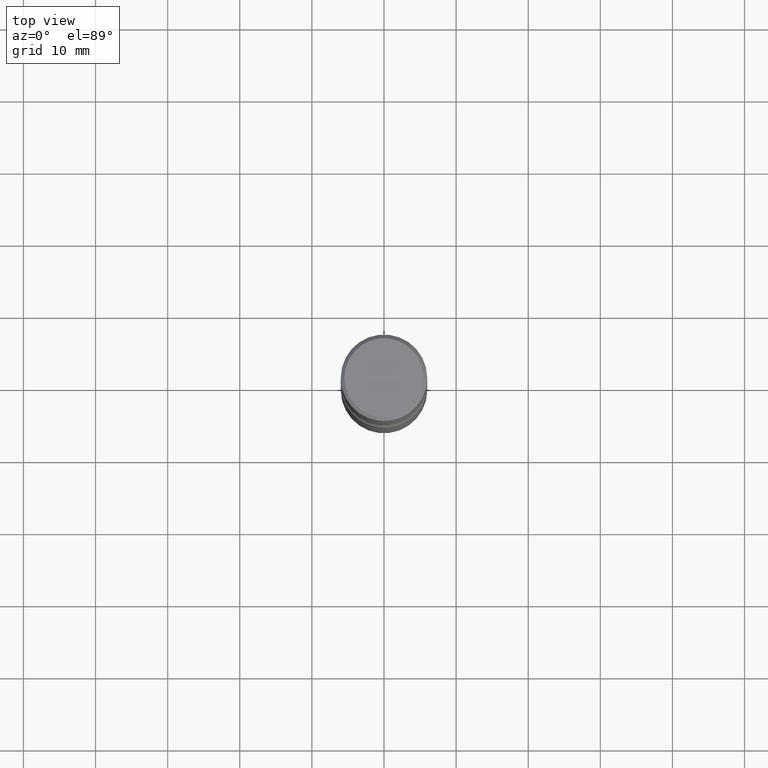
[diagram: clean part render]
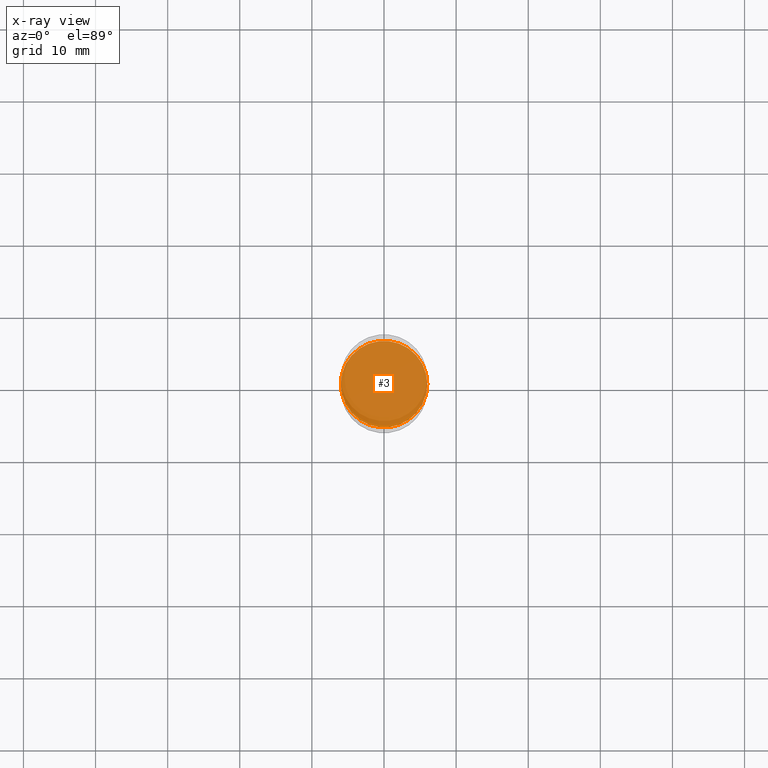
[diagram: x-ray — body ghosted, one internal face saturated and labeled with its STEP entity id]
A machine part, top view, then the same camera in x-ray: the body is ghosted and one INTERNAL B-rep face — a face not visible from any outside direction — is saturated and labeled: STEP entity #3.
In plain terms, the highlighted planar face has unit normal (0, -0, -1).
Its self-contained STEP definition (entity closure, byte-faithful):
#3 = ADVANCED_FACE ( 'NONE', ( #355 ), #12, .F. ) ;
#12 = PLANE ( 'NONE',  #212 ) ;
#42 = CARTESIAN_POINT ( 'NONE',  ( 0.2362000000000002153, -8.797136381349187883E-15, -2.047200000000000575 ) ) ;
#43 = DIRECTION ( 'NONE',  ( -2.445468806185136597E-29, 3.491481338843145583E-15, 1.000000000000000000 ) ) ;
#74 = CARTESIAN_POINT ( 'NONE',  ( 5.006363740022213922E-29, -7.147760596879691357E-15, -2.047200000000000575 ) ) ;
#75 = DIRECTION ( 'NONE',  ( -1.000000000000000000, 6.982962677686265922E-15, -4.876176775795935793E-29 ) ) ;
#159 = VERTEX_POINT ( 'NONE', #418 ) ;
#167 = EDGE_CURVE ( 'NONE', #159, #234, #349, .T. ) ;
#191 = ORIENTED_EDGE ( 'NONE', *, *, #542, .T. ) ;
#206 = CARTESIAN_POINT ( 'NONE',  ( 5.006363740022213922E-29, -7.147760596879691357E-15, -2.047200000000000575 ) ) ;
#212 = AXIS2_PLACEMENT_3D ( 'NONE', #525, #474, #75 ) ;
#216 = DIRECTION ( 'NONE',  ( 1.000000000000000000, -6.982962677686266711E-15, 0.000000000000000000 ) ) ;
#234 = VERTEX_POINT ( 'NONE', #42 ) ;
#302 = AXIS2_PLACEMENT_3D ( 'NONE', #74, #43, #216 ) ;
#349 = CIRCLE ( 'NONE', #302, 0.2362000000000002153 ) ;
#355 = FACE_OUTER_BOUND ( 'NONE', #394, .T. ) ;
#394 = EDGE_LOOP ( 'NONE', ( #191, #539 ) ) ;
#400 = DIRECTION ( 'NONE',  ( 1.000000000000000000, -6.982962677686266711E-15, 0.000000000000000000 ) ) ;
#418 = CARTESIAN_POINT ( 'NONE',  ( -0.2362000000000002153, -8.631169581403742744E-15, -2.047200000000000575 ) ) ;
#426 = AXIS2_PLACEMENT_3D ( 'NONE', #206, #541, #400 ) ;
#474 = DIRECTION ( 'NONE',  ( 2.438088387897960049E-29, -3.491481338843145188E-15, -1.000000000000000000 ) ) ;
#525 = CARTESIAN_POINT ( 'NONE',  ( 5.006363740022213922E-29, -7.147760596879691357E-15, -2.047200000000000575 ) ) ;
#527 = CIRCLE ( 'NONE', #426, 0.2362000000000002153 ) ;
#539 = ORIENTED_EDGE ( 'NONE', *, *, #167, .T. ) ;
#541 = DIRECTION ( 'NONE',  ( -2.445468806185136597E-29, 3.491481338843145583E-15, 1.000000000000000000 ) ) ;
#542 = EDGE_CURVE ( 'NONE', #234, #159, #527, .T. ) ;